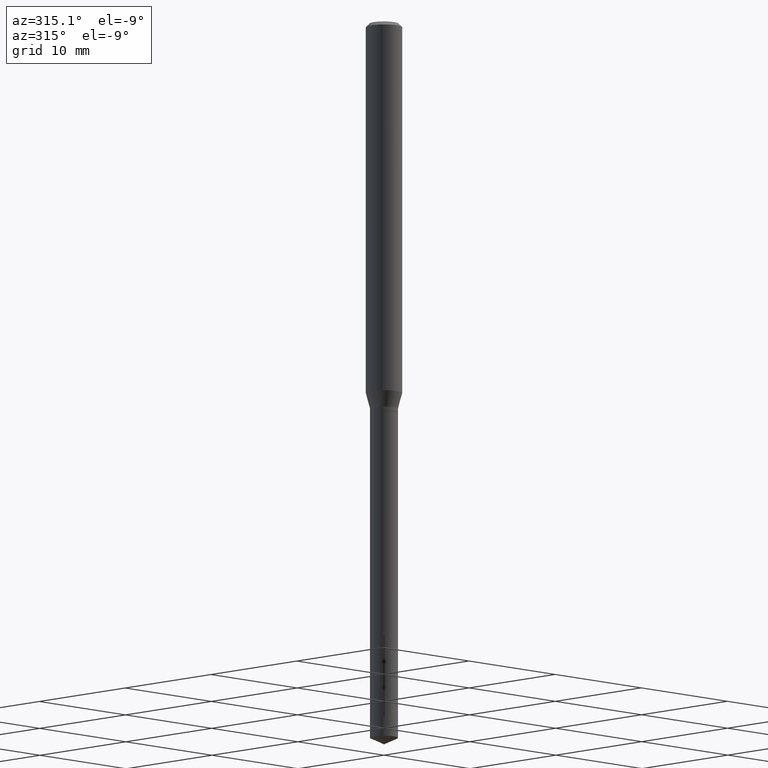
[diagram: clean part render]
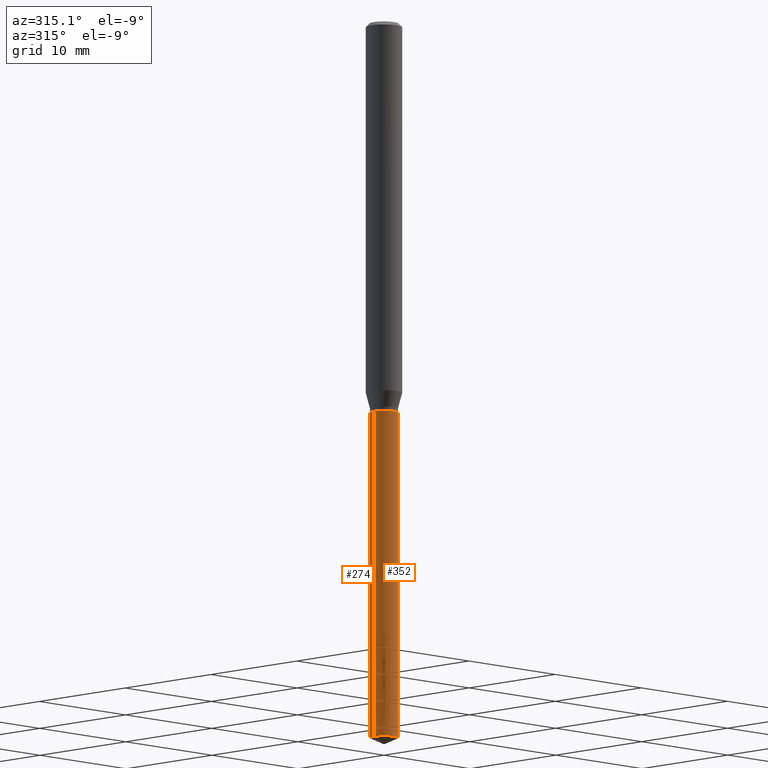
[diagram: same view with one multi-face feature highlighted, each face labeled with its STEP entity id]
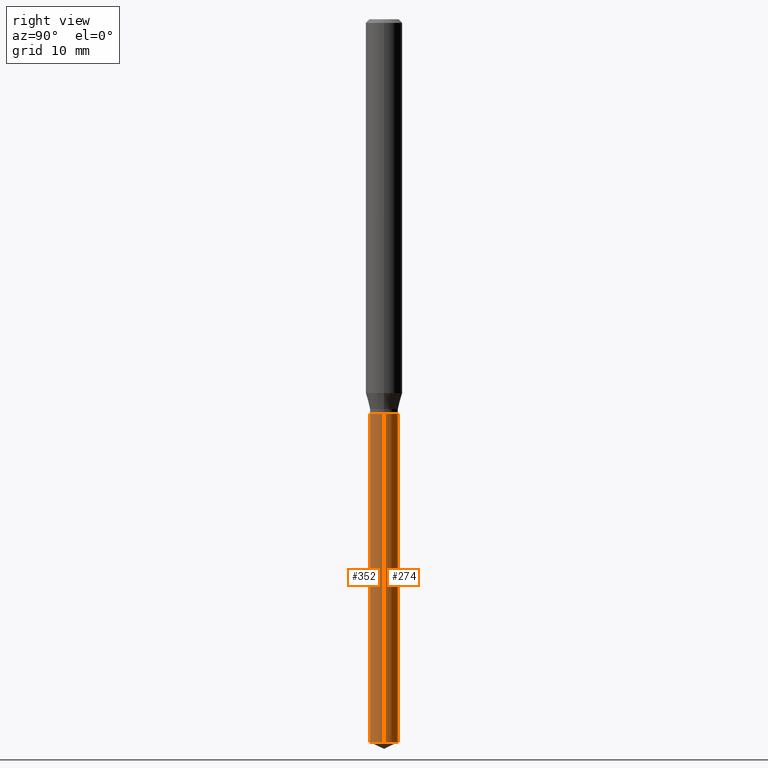
[diagram: same view with one multi-face feature highlighted, each face labeled with its STEP entity id]
A machine part, auxiliary view. The highlighted faces form ONE feature: a constant-radius fillet chain: 2 tangent blend faces with common blend radius 1.1506 mm. The faces share edges in the B-rep.
A second angle (right view) of the same feature is appended — it is thin or edge-on in the first view.
Their STEP definitions:
[1] entity #274 (Cylinder):
#17 = ORIENTED_EDGE ( 'NONE', *, *, #68, .T. ) ;
#31 = DIRECTION ( 'NONE',  ( -2.445468806185136597E-29, 3.491481338843145583E-15, 1.000000000000000000 ) ) ;
#38 = LINE ( 'NONE', #157, #439 ) ;
#59 = EDGE_CURVE ( 'NONE', #142, #257, #210, .T. ) ;
#61 = ORIENTED_EDGE ( 'NONE', *, *, #59, .F. ) ;
#68 = EDGE_CURVE ( 'NONE', #142, #421, #290, .T. ) ;
#82 = DIRECTION ( 'NONE',  ( -2.445468806185136877E-29, 3.491481338843145188E-15, 1.000000000000000000 ) ) ;
#88 = CIRCLE ( 'NONE', #431, 0.04529999999999999999 ) ;
#93 = ORIENTED_EDGE ( 'NONE', *, *, #440, .F. ) ;
#95 = CARTESIAN_POINT ( 'NONE',  ( -0.04530000000000000693, -7.851948226072618556E-15, -2.341076263085578368 ) ) ;
#124 = CARTESIAN_POINT ( 'NONE',  ( 3.119440009169759514E-29, -4.453733595828316609E-15, -1.275599999999999845 ) ) ;
#128 = DIRECTION ( 'NONE',  ( 1.000000000000000000, -6.982962677686271444E-15, 0.000000000000000000 ) ) ;
#129 = VERTEX_POINT ( 'NONE', #300 ) ;
#133 = DIRECTION ( 'NONE',  ( -2.445468806185136597E-29, 3.491481338843145583E-15, 1.000000000000000000 ) ) ;
#142 = VERTEX_POINT ( 'NONE', #184 ) ;
#145 = EDGE_LOOP ( 'NONE', ( #17, #346, #93, #61 ) ) ;
#157 = CARTESIAN_POINT ( 'NONE',  ( -0.04529999999999999999, -4.131857736528991176E-15, -1.275599999999999845 ) ) ;
#184 = CARTESIAN_POINT ( 'NONE',  ( 0.04530000000000000693, -8.490152294671132269E-15, -2.341076263085578368 ) ) ;
#187 = DIRECTION ( 'NONE',  ( 1.000000000000000000, -6.982962677686271444E-15, 0.000000000000000000 ) ) ;
#210 = LINE ( 'NONE', #361, #406 ) ;
#257 = VERTEX_POINT ( 'NONE', #260 ) ;
#260 = CARTESIAN_POINT ( 'NONE',  ( 0.04529999999999999999, -4.770061805127504889E-15, -1.275599999999999845 ) ) ;
#268 = AXIS2_PLACEMENT_3D ( 'NONE', #124, #308, #128 ) ;
#274 = ADVANCED_FACE ( 'NONE', ( #458 ), #456, .T. ) ;
#280 = DIRECTION ( 'NONE',  ( 1.000000000000000000, -6.982962677686271444E-15, 0.000000000000000000 ) ) ;
#290 = CIRCLE ( 'NONE', #323, 0.04529999999999999999 ) ;
#300 = CARTESIAN_POINT ( 'NONE',  ( -0.04529999999999999999, -5.991902981300804471E-15, -1.275599999999999845 ) ) ;
#308 = DIRECTION ( 'NONE',  ( -2.445468806185136597E-29, 3.491481338843145583E-15, 1.000000000000000000 ) ) ;
#323 = AXIS2_PLACEMENT_3D ( 'NONE', #330, #31, #187 ) ;
#330 = CARTESIAN_POINT ( 'NONE',  ( 5.725028974276250871E-29, -8.173824085371943200E-15, -2.341076263085578368 ) ) ;
#346 = ORIENTED_EDGE ( 'NONE', *, *, #402, .T. ) ;
#361 = CARTESIAN_POINT ( 'NONE',  ( 0.04529999999999999999, -4.770061805127504889E-15, -1.275599999999999845 ) ) ;
#369 = DIRECTION ( 'NONE',  ( -2.445468806185136877E-29, 3.491481338843145188E-15, 1.000000000000000000 ) ) ;
#402 = EDGE_CURVE ( 'NONE', #421, #129, #38, .T. ) ;
#406 = VECTOR ( 'NONE', #369, 39.37007874015748143 ) ;
#421 = VERTEX_POINT ( 'NONE', #95 ) ;
#431 = AXIS2_PLACEMENT_3D ( 'NONE', #472, #133, #280 ) ;
#439 = VECTOR ( 'NONE', #82, 39.37007874015748143 ) ;
#440 = EDGE_CURVE ( 'NONE', #257, #129, #88, .T. ) ;
#456 = CYLINDRICAL_SURFACE ( 'NONE', #268, 0.04529999999999999999 ) ;
#458 = FACE_OUTER_BOUND ( 'NONE', #145, .T. ) ;
#472 = CARTESIAN_POINT ( 'NONE',  ( 3.119440009169759514E-29, -4.453733595828316609E-15, -1.275599999999999845 ) ) ;
[2] entity #352 (Cylinder):
#4 = AXIS2_PLACEMENT_3D ( 'NONE', #156, #276, #345 ) ;
#7 = EDGE_CURVE ( 'NONE', #421, #142, #77, .T. ) ;
#24 = DIRECTION ( 'NONE',  ( -2.445468806185136597E-29, 3.491481338843145583E-15, 1.000000000000000000 ) ) ;
#38 = LINE ( 'NONE', #157, #439 ) ;
#44 = DIRECTION ( 'NONE',  ( 1.000000000000000000, -6.982962677686271444E-15, 0.000000000000000000 ) ) ;
#48 = CYLINDRICAL_SURFACE ( 'NONE', #194, 0.04529999999999999999 ) ;
#59 = EDGE_CURVE ( 'NONE', #142, #257, #210, .T. ) ;
#77 = CIRCLE ( 'NONE', #349, 0.04529999999999999999 ) ;
#82 = DIRECTION ( 'NONE',  ( -2.445468806185136877E-29, 3.491481338843145188E-15, 1.000000000000000000 ) ) ;
#95 = CARTESIAN_POINT ( 'NONE',  ( -0.04530000000000000693, -7.851948226072618556E-15, -2.341076263085578368 ) ) ;
#96 = CARTESIAN_POINT ( 'NONE',  ( 5.725028974276250871E-29, -8.173824085371943200E-15, -2.341076263085578368 ) ) ;
#121 = DIRECTION ( 'NONE',  ( -2.445468806185136597E-29, 3.491481338843145583E-15, 1.000000000000000000 ) ) ;
#122 = CIRCLE ( 'NONE', #4, 0.04529999999999999999 ) ;
#129 = VERTEX_POINT ( 'NONE', #300 ) ;
#142 = VERTEX_POINT ( 'NONE', #184 ) ;
#156 = CARTESIAN_POINT ( 'NONE',  ( 3.119440009169759514E-29, -4.453733595828316609E-15, -1.275599999999999845 ) ) ;
#157 = CARTESIAN_POINT ( 'NONE',  ( -0.04529999999999999999, -4.131857736528991176E-15, -1.275599999999999845 ) ) ;
#172 = DIRECTION ( 'NONE',  ( 1.000000000000000000, -6.982962677686271444E-15, 0.000000000000000000 ) ) ;
#184 = CARTESIAN_POINT ( 'NONE',  ( 0.04530000000000000693, -8.490152294671132269E-15, -2.341076263085578368 ) ) ;
#194 = AXIS2_PLACEMENT_3D ( 'NONE', #278, #121, #44 ) ;
#210 = LINE ( 'NONE', #361, #406 ) ;
#243 = EDGE_LOOP ( 'NONE', ( #353, #318, #380, #310 ) ) ;
#257 = VERTEX_POINT ( 'NONE', #260 ) ;
#260 = CARTESIAN_POINT ( 'NONE',  ( 0.04529999999999999999, -4.770061805127504889E-15, -1.275599999999999845 ) ) ;
#276 = DIRECTION ( 'NONE',  ( -2.445468806185136597E-29, 3.491481338843145583E-15, 1.000000000000000000 ) ) ;
#278 = CARTESIAN_POINT ( 'NONE',  ( 3.119440009169759514E-29, -4.453733595828316609E-15, -1.275599999999999845 ) ) ;
#295 = EDGE_CURVE ( 'NONE', #129, #257, #122, .T. ) ;
#300 = CARTESIAN_POINT ( 'NONE',  ( -0.04529999999999999999, -5.991902981300804471E-15, -1.275599999999999845 ) ) ;
#310 = ORIENTED_EDGE ( 'NONE', *, *, #295, .F. ) ;
#318 = ORIENTED_EDGE ( 'NONE', *, *, #7, .T. ) ;
#345 = DIRECTION ( 'NONE',  ( 1.000000000000000000, -6.982962677686271444E-15, 0.000000000000000000 ) ) ;
#349 = AXIS2_PLACEMENT_3D ( 'NONE', #96, #24, #172 ) ;
#352 = ADVANCED_FACE ( 'NONE', ( #420 ), #48, .T. ) ;
#353 = ORIENTED_EDGE ( 'NONE', *, *, #402, .F. ) ;
#361 = CARTESIAN_POINT ( 'NONE',  ( 0.04529999999999999999, -4.770061805127504889E-15, -1.275599999999999845 ) ) ;
#369 = DIRECTION ( 'NONE',  ( -2.445468806185136877E-29, 3.491481338843145188E-15, 1.000000000000000000 ) ) ;
#380 = ORIENTED_EDGE ( 'NONE', *, *, #59, .T. ) ;
#402 = EDGE_CURVE ( 'NONE', #421, #129, #38, .T. ) ;
#406 = VECTOR ( 'NONE', #369, 39.37007874015748143 ) ;
#420 = FACE_OUTER_BOUND ( 'NONE', #243, .T. ) ;
#421 = VERTEX_POINT ( 'NONE', #95 ) ;
#439 = VECTOR ( 'NONE', #82, 39.37007874015748143 ) ;